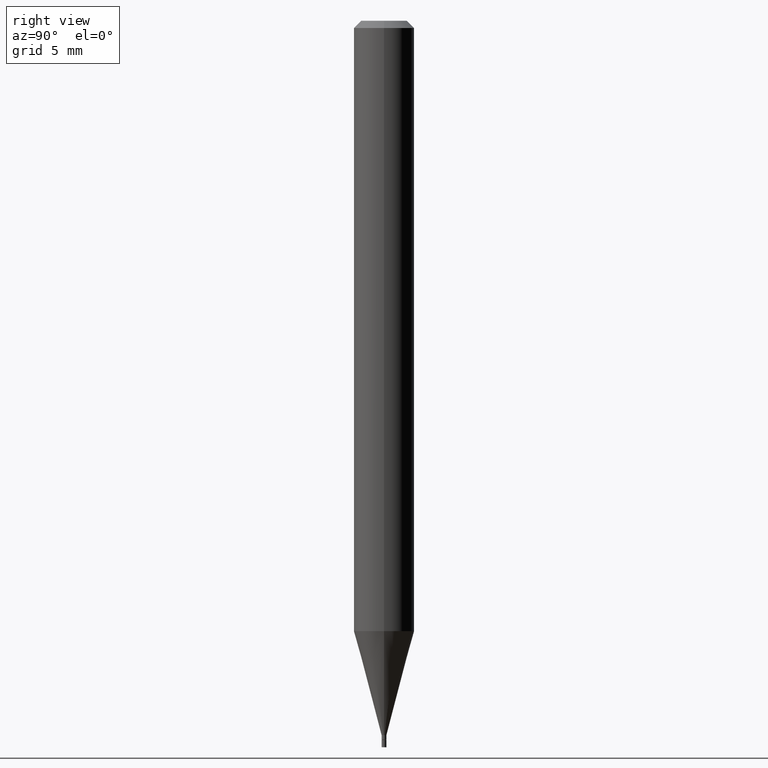
[diagram: clean part render]
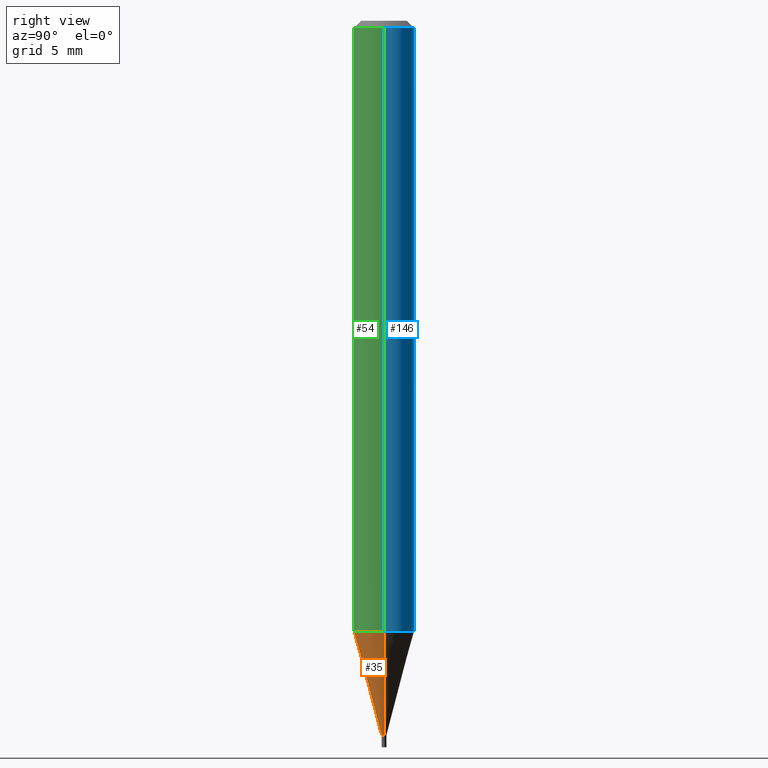
[diagram: same view with three faces highlighted in distinct colors, each labeled with its STEP entity id]
A machine part, right view with three faces highlighted in distinct colors.
Their STEP definitions:

[orange] entity #35 — the highlighted conical surface has half-angle 15 deg.
#15 = CARTESIAN_POINT ( 'NONE',  ( 3.082286193725132894E-29, -4.400687794154770769E-15, -1.260407078564790062 ) ) ;
#29 = EDGE_CURVE ( 'NONE', #293, #283, #48, .T. ) ;
#32 = VERTEX_POINT ( 'NONE', #337 ) ;
#34 = ORIENTED_EDGE ( 'NONE', *, *, #300, .T. ) ;
#35 = ADVANCED_FACE ( 'NONE', ( #448 ), #122, .T. ) ;
#48 = LINE ( 'NONE', #125, #360 ) ;
#72 = EDGE_CURVE ( 'NONE', #283, #446, #236, .T. ) ;
#118 = DIRECTION ( 'NONE',  ( -2.445468806185136597E-29, 3.491481338843145583E-15, 1.000000000000000000 ) ) ;
#122 = CONICAL_SURFACE ( 'NONE', #185, 0.004999999999999921174, 0.2617993877991500740 ) ;
#125 = CARTESIAN_POINT ( 'NONE',  ( -0.004999999999999921174, -5.114407838005636380E-15, -1.475000000000000311 ) ) ;
#128 = CARTESIAN_POINT ( 'NONE',  ( 3.607066489123076592E-29, -5.149934974793640632E-15, -1.475000000000000311 ) ) ;
#157 = DIRECTION ( 'NONE',  ( -2.445468806185136597E-29, 3.491481338843145583E-15, 1.000000000000000000 ) ) ;
#159 = CARTESIAN_POINT ( 'NONE',  ( 0.06249999999999999306, -4.837122961510163228E-15, -1.260407078564790062 ) ) ;
#160 = DIRECTION ( 'NONE',  ( 1.000000000000000000, -6.982962677686248567E-15, 0.000000000000000000 ) ) ;
#171 = AXIS2_PLACEMENT_3D ( 'NONE', #128, #282, #417 ) ;
#176 = ORIENTED_EDGE ( 'NONE', *, *, #29, .F. ) ;
#185 = AXIS2_PLACEMENT_3D ( 'NONE', #403, #118, #160 ) ;
#196 = ORIENTED_EDGE ( 'NONE', *, *, #72, .F. ) ;
#218 = CARTESIAN_POINT ( 'NONE',  ( -0.06249999999999999306, -3.956598584304708153E-15, -1.260407078564790062 ) ) ;
#219 = EDGE_CURVE ( 'NONE', #32, #446, #355, .T. ) ;
#236 = CIRCLE ( 'NONE', #438, 0.06250000000000000000 ) ;
#276 = DIRECTION ( 'NONE',  ( -0.2588190451025213501, 5.211531920934551042E-15, 0.9659258262890682012 ) ) ;
#278 = VECTOR ( 'NONE', #422, 39.37007874015747433 ) ;
#281 = DIRECTION ( 'NONE',  ( 1.000000000000000000, -6.982962677686262766E-15, 0.000000000000000000 ) ) ;
#282 = DIRECTION ( 'NONE',  ( -2.445468806185136597E-29, 3.491481338843145583E-15, 1.000000000000000000 ) ) ;
#283 = VERTEX_POINT ( 'NONE', #218 ) ;
#285 = EDGE_LOOP ( 'NONE', ( #176, #34, #436, #196 ) ) ;
#293 = VERTEX_POINT ( 'NONE', #314 ) ;
#300 = EDGE_CURVE ( 'NONE', #293, #32, #401, .T. ) ;
#314 = CARTESIAN_POINT ( 'NONE',  ( -0.004999999999999921174, -4.535503211155172266E-15, -1.475000000000000311 ) ) ;
#337 = CARTESIAN_POINT ( 'NONE',  ( 0.004999999999999921174, -5.184849788182071492E-15, -1.475000000000000311 ) ) ;
#355 = LINE ( 'NONE', #452, #278 ) ;
#360 = VECTOR ( 'NONE', #276, 39.37007874015747433 ) ;
#401 = CIRCLE ( 'NONE', #171, 0.004999999999999921174 ) ;
#403 = CARTESIAN_POINT ( 'NONE',  ( 3.607066489123076592E-29, -5.149934974793640632E-15, -1.475000000000000311 ) ) ;
#417 = DIRECTION ( 'NONE',  ( 1.000000000000000000, -6.982962677686248567E-15, 0.000000000000000000 ) ) ;
#422 = DIRECTION ( 'NONE',  ( 0.2588190451025213501, 1.565188264969621968E-15, 0.9659258262890682012 ) ) ;
#436 = ORIENTED_EDGE ( 'NONE', *, *, #219, .T. ) ;
#438 = AXIS2_PLACEMENT_3D ( 'NONE', #15, #157, #281 ) ;
#446 = VERTEX_POINT ( 'NONE', #159 ) ;
#448 = FACE_OUTER_BOUND ( 'NONE', #285, .T. ) ;
#452 = CARTESIAN_POINT ( 'NONE',  ( 0.004999999999999921174, -5.184849788182071492E-15, -1.475000000000000311 ) ) ;

[blue] entity #146 — the highlighted cylindrical surface (edge-blend (fillet) strip) has radius 1.5875 mm, axis along (-0, 0, 1).
#7 = CARTESIAN_POINT ( 'NONE',  ( 3.668203209277705088E-31, -5.237222008264718399E-17, -0.01499999999999999944 ) ) ;
#16 = CARTESIAN_POINT ( 'NONE',  ( 0.06250000000000000000, -4.888073874380388472E-16, -0.01499999999999999944 ) ) ;
#26 = CARTESIAN_POINT ( 'NONE',  ( 3.082286193725132894E-29, -4.400687794154770769E-15, -1.260407078564790062 ) ) ;
#28 = ORIENTED_EDGE ( 'NONE', *, *, #347, .F. ) ;
#58 = DIRECTION ( 'NONE',  ( 1.000000000000000000, -6.982962677686266711E-15, 4.876176775795935793E-29 ) ) ;
#60 = ORIENTED_EDGE ( 'NONE', *, *, #114, .T. ) ;
#65 = VERTEX_POINT ( 'NONE', #405 ) ;
#92 = DIRECTION ( 'NONE',  ( -2.445468806185136877E-29, 3.491481338843145188E-15, 1.000000000000000000 ) ) ;
#114 = EDGE_CURVE ( 'NONE', #283, #65, #374, .T. ) ;
#134 = EDGE_LOOP ( 'NONE', ( #388, #60, #28, #382 ) ) ;
#135 = DIRECTION ( 'NONE',  ( -2.445468806185136597E-29, 3.491481338843145583E-15, 1.000000000000000000 ) ) ;
#146 = ADVANCED_FACE ( 'NONE', ( #286 ), #353, .T. ) ;
#153 = AXIS2_PLACEMENT_3D ( 'NONE', #328, #284, #58 ) ;
#159 = CARTESIAN_POINT ( 'NONE',  ( 0.06249999999999999306, -4.837122961510163228E-15, -1.260407078564790062 ) ) ;
#218 = CARTESIAN_POINT ( 'NONE',  ( -0.06249999999999999306, -3.956598584304708153E-15, -1.260407078564790062 ) ) ;
#224 = AXIS2_PLACEMENT_3D ( 'NONE', #26, #135, #424 ) ;
#233 = LINE ( 'NONE', #274, #420 ) ;
#270 = DIRECTION ( 'NONE',  ( 1.000000000000000000, -6.982962677686266711E-15, 0.000000000000000000 ) ) ;
#272 = EDGE_CURVE ( 'NONE', #446, #283, #418, .T. ) ;
#274 = CARTESIAN_POINT ( 'NONE',  ( 0.06250000000000000000, -4.364351673553916694E-16, 3.047610484872459871E-30 ) ) ;
#283 = VERTEX_POINT ( 'NONE', #218 ) ;
#284 = DIRECTION ( 'NONE',  ( -2.445468806185136597E-29, 3.491481338843145583E-15, 1.000000000000000000 ) ) ;
#286 = FACE_OUTER_BOUND ( 'NONE', #134, .T. ) ;
#290 = VECTOR ( 'NONE', #92, 39.37007874015748143 ) ;
#328 = CARTESIAN_POINT ( 'NONE',  ( 0.000000000000000000, 0.000000000000000000, 0.000000000000000000 ) ) ;
#335 = DIRECTION ( 'NONE',  ( -2.445468806185136877E-29, 3.491481338843145188E-15, 1.000000000000000000 ) ) ;
#339 = DIRECTION ( 'NONE',  ( -2.445468806185136597E-29, 3.491481338843145583E-15, 1.000000000000000000 ) ) ;
#347 = EDGE_CURVE ( 'NONE', #421, #65, #447, .T. ) ;
#353 = CYLINDRICAL_SURFACE ( 'NONE', #153, 0.06250000000000000000 ) ;
#361 = AXIS2_PLACEMENT_3D ( 'NONE', #7, #339, #270 ) ;
#374 = LINE ( 'NONE', #415, #290 ) ;
#382 = ORIENTED_EDGE ( 'NONE', *, *, #390, .F. ) ;
#388 = ORIENTED_EDGE ( 'NONE', *, *, #272, .T. ) ;
#390 = EDGE_CURVE ( 'NONE', #446, #421, #233, .T. ) ;
#405 = CARTESIAN_POINT ( 'NONE',  ( -0.06250000000000000000, -1.782440797268646111E-15, -0.01499999999999999944 ) ) ;
#415 = CARTESIAN_POINT ( 'NONE',  ( -0.06250000000000000000, 4.440892098500626162E-16, -3.074334431409316114E-30 ) ) ;
#418 = CIRCLE ( 'NONE', #224, 0.06250000000000000000 ) ;
#420 = VECTOR ( 'NONE', #335, 39.37007874015748143 ) ;
#421 = VERTEX_POINT ( 'NONE', #16 ) ;
#424 = DIRECTION ( 'NONE',  ( 1.000000000000000000, -6.982962677686262766E-15, 0.000000000000000000 ) ) ;
#446 = VERTEX_POINT ( 'NONE', #159 ) ;
#447 = CIRCLE ( 'NONE', #361, 0.06250000000000000000 ) ;

[green] entity #54 — the highlighted cylindrical surface (edge-blend (fillet) strip) has radius 1.5875 mm, axis along (-0, 0, 1).
#15 = CARTESIAN_POINT ( 'NONE',  ( 3.082286193725132894E-29, -4.400687794154770769E-15, -1.260407078564790062 ) ) ;
#16 = CARTESIAN_POINT ( 'NONE',  ( 0.06250000000000000000, -4.888073874380388472E-16, -0.01499999999999999944 ) ) ;
#54 = ADVANCED_FACE ( 'NONE', ( #362 ), #450, .T. ) ;
#65 = VERTEX_POINT ( 'NONE', #405 ) ;
#72 = EDGE_CURVE ( 'NONE', #283, #446, #236, .T. ) ;
#92 = DIRECTION ( 'NONE',  ( -2.445468806185136877E-29, 3.491481338843145188E-15, 1.000000000000000000 ) ) ;
#114 = EDGE_CURVE ( 'NONE', #283, #65, #374, .T. ) ;
#120 = DIRECTION ( 'NONE',  ( -2.445468806185136597E-29, 3.491481338843145583E-15, 1.000000000000000000 ) ) ;
#148 = CIRCLE ( 'NONE', #332, 0.06250000000000000000 ) ;
#157 = DIRECTION ( 'NONE',  ( -2.445468806185136597E-29, 3.491481338843145583E-15, 1.000000000000000000 ) ) ;
#159 = CARTESIAN_POINT ( 'NONE',  ( 0.06249999999999999306, -4.837122961510163228E-15, -1.260407078564790062 ) ) ;
#169 = ORIENTED_EDGE ( 'NONE', *, *, #114, .F. ) ;
#178 = ORIENTED_EDGE ( 'NONE', *, *, #72, .T. ) ;
#202 = CARTESIAN_POINT ( 'NONE',  ( 0.000000000000000000, 0.000000000000000000, 0.000000000000000000 ) ) ;
#218 = CARTESIAN_POINT ( 'NONE',  ( -0.06249999999999999306, -3.956598584304708153E-15, -1.260407078564790062 ) ) ;
#232 = ORIENTED_EDGE ( 'NONE', *, *, #390, .T. ) ;
#233 = LINE ( 'NONE', #274, #420 ) ;
#236 = CIRCLE ( 'NONE', #438, 0.06250000000000000000 ) ;
#261 = DIRECTION ( 'NONE',  ( 1.000000000000000000, -6.982962677686266711E-15, 0.000000000000000000 ) ) ;
#271 = DIRECTION ( 'NONE',  ( 1.000000000000000000, -6.982962677686266711E-15, 4.876176775795935793E-29 ) ) ;
#274 = CARTESIAN_POINT ( 'NONE',  ( 0.06250000000000000000, -4.364351673553916694E-16, 3.047610484872459871E-30 ) ) ;
#281 = DIRECTION ( 'NONE',  ( 1.000000000000000000, -6.982962677686262766E-15, 0.000000000000000000 ) ) ;
#283 = VERTEX_POINT ( 'NONE', #218 ) ;
#290 = VECTOR ( 'NONE', #92, 39.37007874015748143 ) ;
#294 = CARTESIAN_POINT ( 'NONE',  ( 3.668203209277705088E-31, -5.237222008264718399E-17, -0.01499999999999999944 ) ) ;
#317 = EDGE_CURVE ( 'NONE', #65, #421, #148, .T. ) ;
#320 = EDGE_LOOP ( 'NONE', ( #169, #178, #232, #349 ) ) ;
#332 = AXIS2_PLACEMENT_3D ( 'NONE', #294, #437, #261 ) ;
#335 = DIRECTION ( 'NONE',  ( -2.445468806185136877E-29, 3.491481338843145188E-15, 1.000000000000000000 ) ) ;
#336 = AXIS2_PLACEMENT_3D ( 'NONE', #202, #120, #271 ) ;
#349 = ORIENTED_EDGE ( 'NONE', *, *, #317, .F. ) ;
#362 = FACE_OUTER_BOUND ( 'NONE', #320, .T. ) ;
#374 = LINE ( 'NONE', #415, #290 ) ;
#390 = EDGE_CURVE ( 'NONE', #446, #421, #233, .T. ) ;
#405 = CARTESIAN_POINT ( 'NONE',  ( -0.06250000000000000000, -1.782440797268646111E-15, -0.01499999999999999944 ) ) ;
#415 = CARTESIAN_POINT ( 'NONE',  ( -0.06250000000000000000, 4.440892098500626162E-16, -3.074334431409316114E-30 ) ) ;
#420 = VECTOR ( 'NONE', #335, 39.37007874015748143 ) ;
#421 = VERTEX_POINT ( 'NONE', #16 ) ;
#437 = DIRECTION ( 'NONE',  ( -2.445468806185136597E-29, 3.491481338843145583E-15, 1.000000000000000000 ) ) ;
#438 = AXIS2_PLACEMENT_3D ( 'NONE', #15, #157, #281 ) ;
#446 = VERTEX_POINT ( 'NONE', #159 ) ;
#450 = CYLINDRICAL_SURFACE ( 'NONE', #336, 0.06250000000000000000 ) ;